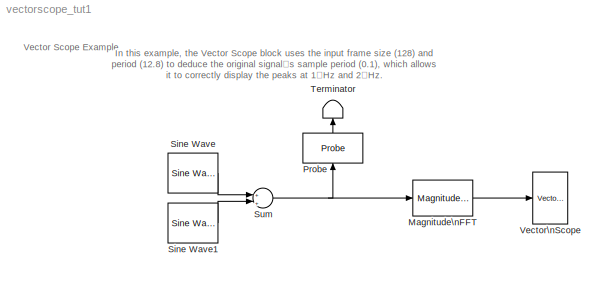
MODEL vectorscope_tut1
KIND model
CONFIG AbsTol = auto
CONFIG FixedStep = auto
CONFIG MaxStep = auto
CONFIG MinStep = auto
CONFIG RelTol = 1e-3
CONFIG Solver = FixedStepDiscrete
CONFIG SolverMode = Auto
CONFIG StartTime = 0.0
CONFIG StopTime = inf
BLOCK [Reference] Magnitude\nFFT  REF=dspspect3/Magnitude\nFFT
  Ports = [1, 1]
  SourceBlock = dspspect3/Magnitude\nFFT
  SourceType = Magnitude FFT
  fftLenInherit = on
  fftsize = 256
  mag_or_magsq = Magnitude squared
BLOCK [Probe] Probe
  Ports = [1, 1]
  ProbeComplexSignal = off
  ProbeWidth = off
BLOCK [Reference] Sine Wave  REF=dspsrcs4/Sine Wave
  Amplitude = 1
  CompMethod = Trigonometric fcn
  Frequency = 1
  OutComplex = Real
  Phase = 0
  Ports = [0, 1]
  ResetState = Restart at time zero
  SampleMode = Discrete
  SampleTime = 0.1
  SamplesPerFrame = 128
  SourceBlock = dspsrcs4/Sine Wave
  SourceType = Sine Wave
  TableSize = Speed
  additionalParams = off
  dataType = double
  fracBitsMode = Best precision
  numFracBits = 14
  udDataType = sfix(16)
  wordLen = 16
BLOCK [Reference] Sine Wave1  REF=dspsrcs4/Sine Wave
  Amplitude = 1
  CompMethod = Trigonometric fcn
  Frequency = 2
  OutComplex = Real
  Phase = 0
  Ports = [0, 1]
  ResetState = Restart at time zero
  SampleMode = Discrete
  SampleTime = 0.1
  SamplesPerFrame = 128
  SourceBlock = dspsrcs4/Sine Wave
  SourceType = Sine Wave
  TableSize = Speed
  additionalParams = off
  dataType = double
  fracBitsMode = Best precision
  numFracBits = 14
  udDataType = sfix(16)
  wordLen = 16
BLOCK [Sum] Sum
  IconShape = round
  Inputs = +|+
  Ports = [2, 1]
BLOCK [Terminator] Terminator
BLOCK [Reference] Vector\nScope  REF=dspsnks4/Vector\nScope
  AxisGrid = on
  AxisLegend = off
  AxisProperties = on
  AxisZoom = off
  DisplayProperties = off
  Domain = Frequency
  FigPos = get(0,'defaultfigureposition')
  FrameNumber = on
  HorizSpan = 1
  InheritXIncr = on
  LineProperties = off
  Memory = off
  OpenScopeAtSimStart = on
  OpenScopeImmediately = off
  Ports = [1]
  ScopeProperties = off
  SourceBlock = dspsnks4/Vector\nScope
  SourceType = Vector Scope
  XIncr = -1
  XLabel = Samples
  XRange = [0...Fs/2]
  XUnits = Hertz
  YLabel = Amplitude
  YMax = 40
  YMin = -10
  YUnits = dB
ANNOTATION (root): In this example, the Vector Scope block uses the input frame size (128) and\nperiod (12.8) to deduce the original signal’s sample period (0.1), which allows\nit to correctly display the peaks at 1 Hz and 2 Hz.
ANNOTATION (root): Vector Scope Example
LINE Magnitude\nFFT:1 -> Vector\nScope:1
LINE Probe:1 -> Terminator:1
LINE Sine Wave1:1 -> Sum:2
LINE Sine Wave:1 -> Sum:1
NET Sum:1 -> Magnitude\nFFT:1, Probe:1
note: NET lines group one-source signal fan-out (src -> all destinations, sorted); 1:1 wires keep LINE
